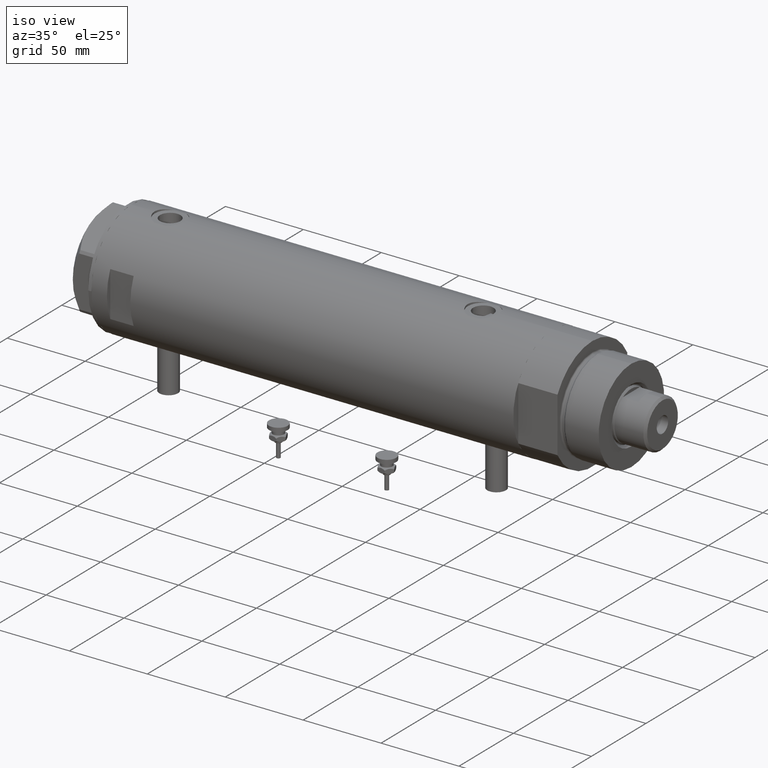
[diagram: clean part render]
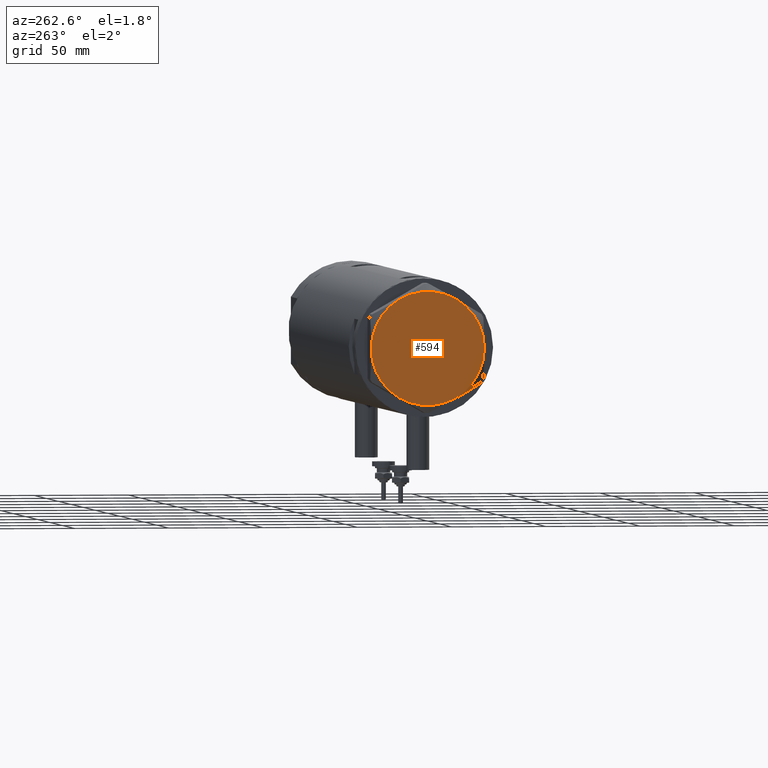
[diagram: tour spotlight — one face highlighted and labeled with its STEP entity id]
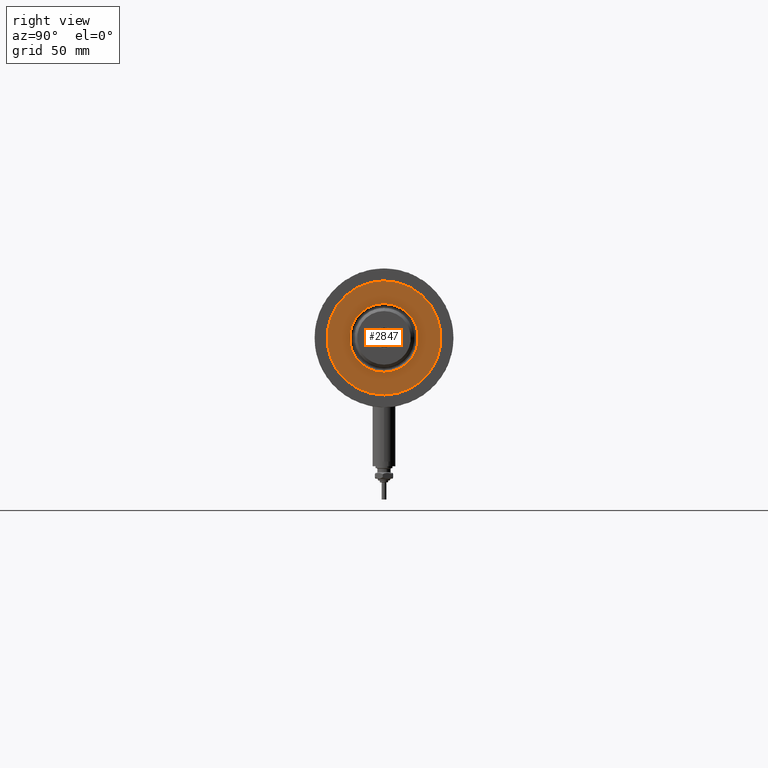
[diagram: tour spotlight — one face highlighted and labeled with its STEP entity id]
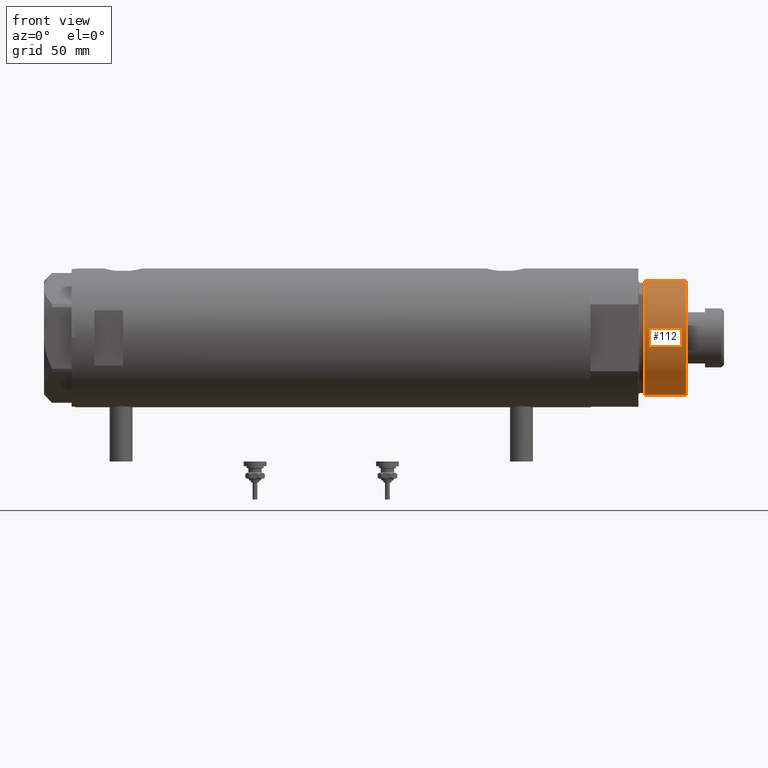
[diagram: tour spotlight — one face highlighted and labeled with its STEP entity id]
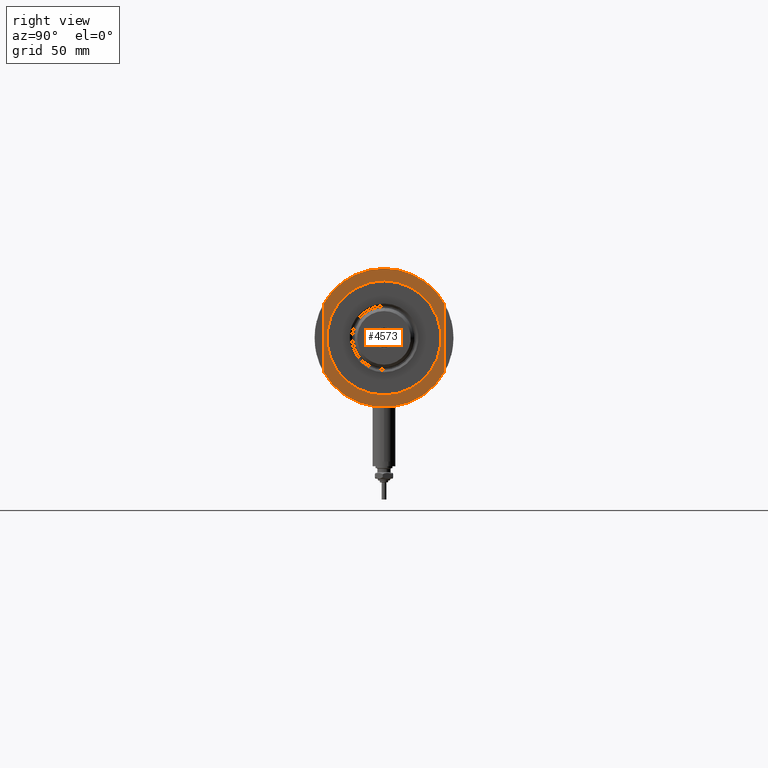
[diagram: tour spotlight — one face highlighted and labeled with its STEP entity id]
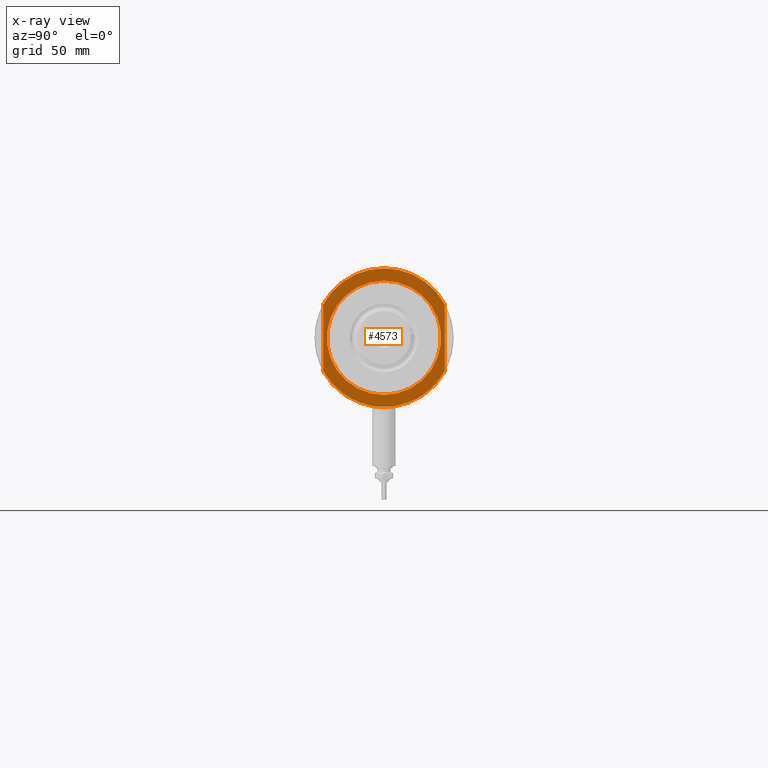
[diagram: x-ray of the same camera — body ghosted, this tour face saturated]
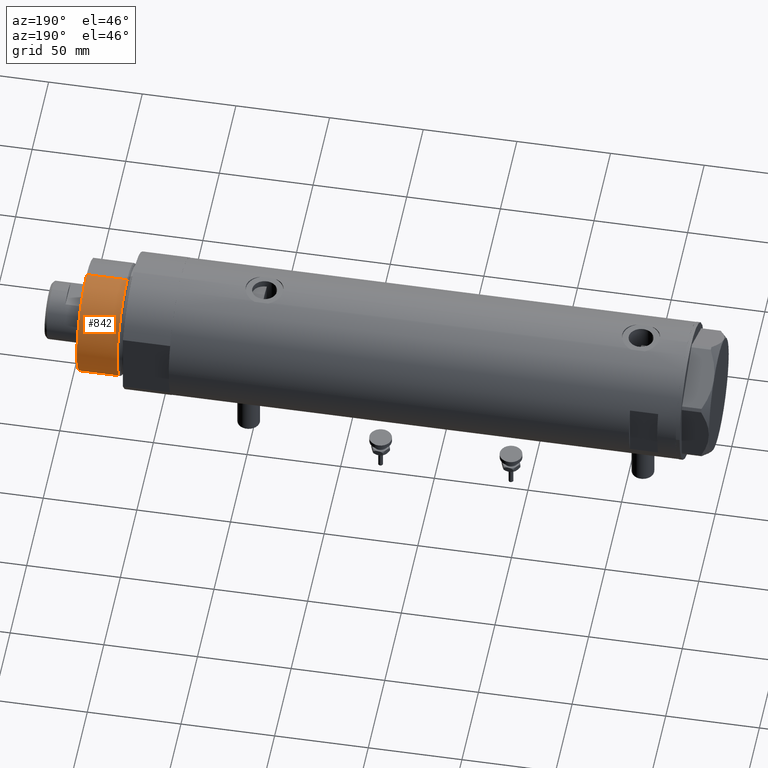
[diagram: tour spotlight — one face highlighted and labeled with its STEP entity id]
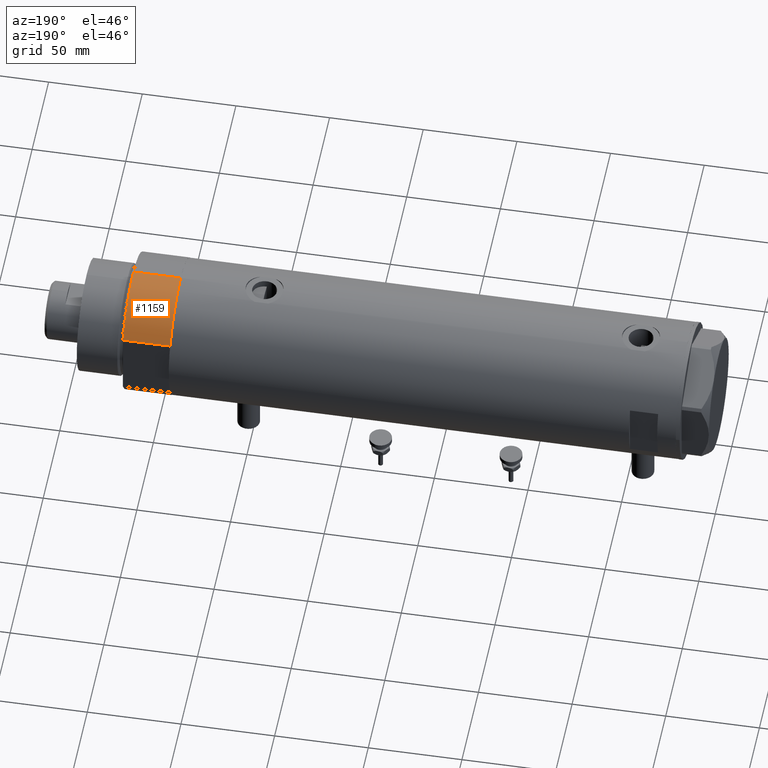
[diagram: tour spotlight — one face highlighted and labeled with its STEP entity id]
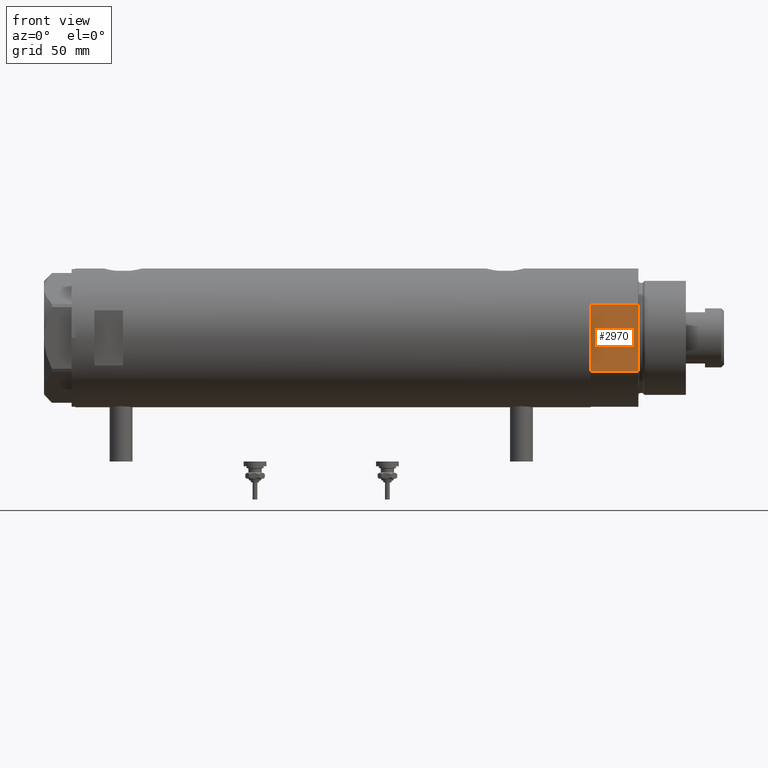
[diagram: tour spotlight — one face highlighted and labeled with its STEP entity id]
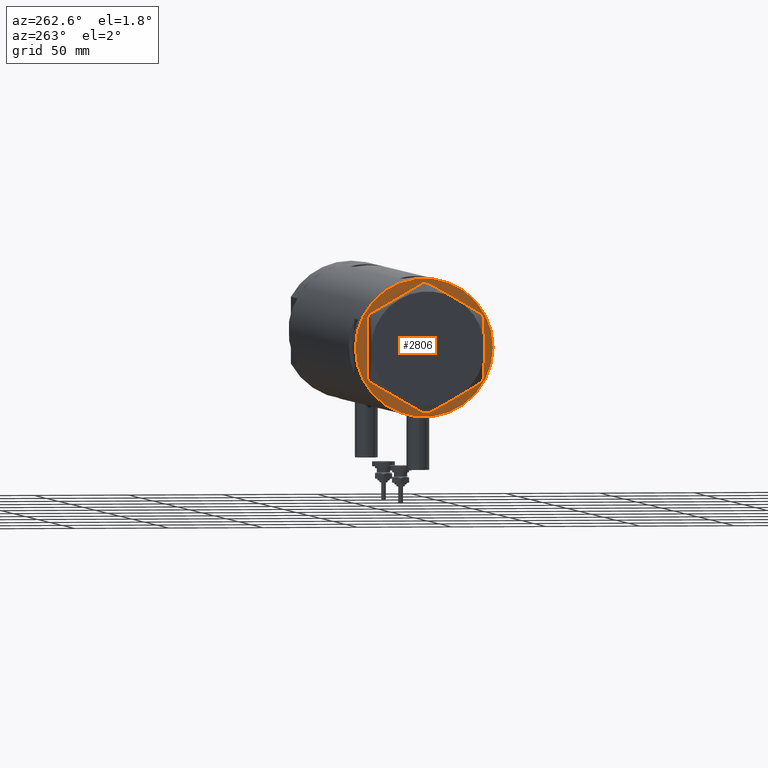
[diagram: tour spotlight — one face highlighted and labeled with its STEP entity id]
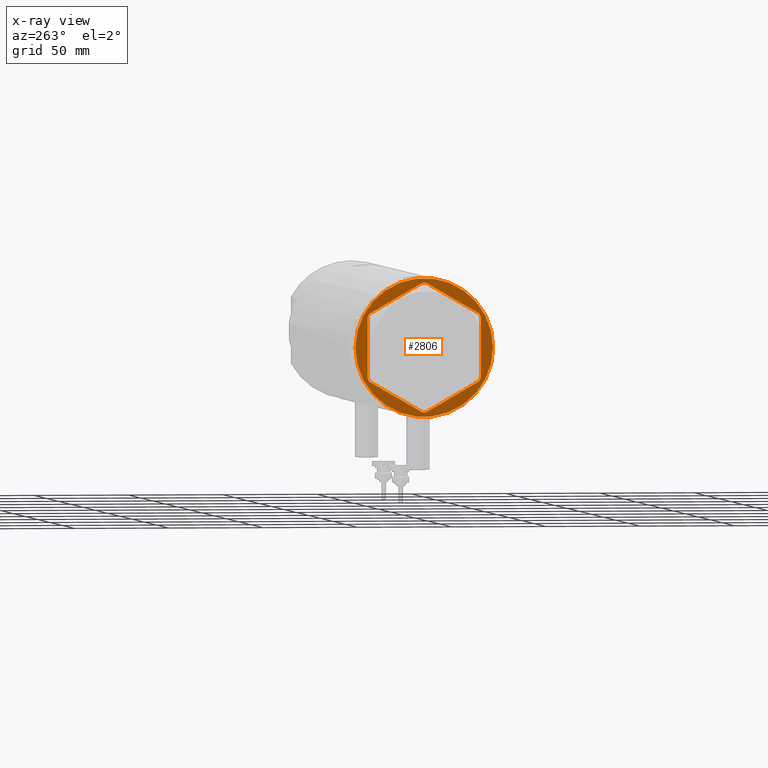
[diagram: x-ray of the same camera — body ghosted, this tour face saturated]
A machine part: a face-by-face anatomy tour. The part has 212 B-rep faces; the first image is the clean iso view, then the 8 largest visible faces are spotlighted one at a time (largest first), each with its STEP entity span.

Face 1 — auxiliary view, entity #594. In plain terms, the highlighted planar face has unit normal (-1, -0, 0).
Definition (entity closure, byte-faithful):
#37 = EDGE_CURVE ( 'NONE', #1733, #5540, #2464, .T. ) ;
#227 = AXIS2_PLACEMENT_3D ( 'NONE', #764, #3905, #297 ) ;
#297 = DIRECTION ( 'NONE',  ( 1.000000000000000000, 0.000000000000000000, 0.000000000000000000 ) ) ;
#335 = DIRECTION ( 'NONE',  ( 0.000000000000000000, 0.000000000000000000, 1.000000000000000000 ) ) ;
#406 = EDGE_LOOP ( 'NONE', ( #4609, #1707, #4826, #2868, #2639, #605 ) ) ;
#594 = ADVANCED_FACE ( 'NONE', ( #615 ), #1976, .T. ) ;
#605 = ORIENTED_EDGE ( 'NONE', *, *, #4395, .T. ) ;
#615 = FACE_OUTER_BOUND ( 'NONE', #406, .T. ) ;
#652 = AXIS2_PLACEMENT_3D ( 'NONE', #1915, #1462, #1049 ) ;
#702 = CIRCLE ( 'NONE', #227, 30.00000000000000000 ) ;
#764 = CARTESIAN_POINT ( 'NONE',  ( 0.000000000000000000, 0.000000000000000000, 14.50000000000000000 ) ) ;
#856 = DIRECTION ( 'NONE',  ( 1.000000000000000000, 0.000000000000000000, 0.000000000000000000 ) ) ;
#1026 = AXIS2_PLACEMENT_3D ( 'NONE', #1218, #335, #3982 ) ;
#1034 = CIRCLE ( 'NONE', #5377, 30.00000000000000000 ) ;
#1049 = DIRECTION ( 'NONE',  ( 1.000000000000000000, 0.000000000000000000, -0.000000000000000000 ) ) ;
#1127 = VERTEX_POINT ( 'NONE', #5783 ) ;
#1218 = CARTESIAN_POINT ( 'NONE',  ( 0.000000000000000000, 0.000000000000000000, 14.50000000000000000 ) ) ;
#1226 = CARTESIAN_POINT ( 'NONE',  ( 0.000000000000000000, 0.000000000000000000, 14.50000000000000000 ) ) ;
#1276 = EDGE_CURVE ( 'NONE', #5828, #4062, #2666, .T. ) ;
#1462 = DIRECTION ( 'NONE',  ( 0.000000000000000000, 0.000000000000000000, 1.000000000000000000 ) ) ;
#1611 = DIRECTION ( 'NONE',  ( 0.000000000000000000, 0.000000000000000000, 1.000000000000000000 ) ) ;
#1648 = VERTEX_POINT ( 'NONE', #5380 ) ;
#1707 = ORIENTED_EDGE ( 'NONE', *, *, #1276, .T. ) ;
#1733 = VERTEX_POINT ( 'NONE', #5033 ) ;
#1811 = CARTESIAN_POINT ( 'NONE',  ( 0.000000000000000000, 0.000000000000000000, 14.50000000000000000 ) ) ;
#1842 = CIRCLE ( 'NONE', #5218, 30.00000000000000000 ) ;
#1915 = CARTESIAN_POINT ( 'NONE',  ( 0.000000000000000000, 0.000000000000000000, 14.50000000000000000 ) ) ;
#1976 = PLANE ( 'NONE',  #652 ) ;
#1987 = DIRECTION ( 'NONE',  ( 0.000000000000000000, 0.000000000000000000, 1.000000000000000000 ) ) ;
#2116 = CARTESIAN_POINT ( 'NONE',  ( 0.000000000000000000, 0.000000000000000000, 14.50000000000000000 ) ) ;
#2164 = CARTESIAN_POINT ( 'NONE',  ( -30.00000000000000000, 0.000000000000000000, 14.50000000000000000 ) ) ;
#2464 = CIRCLE ( 'NONE', #1026, 30.00000000000000000 ) ;
#2468 = DIRECTION ( 'NONE',  ( 1.000000000000000000, 0.000000000000000000, 0.000000000000000000 ) ) ;
#2506 = EDGE_CURVE ( 'NONE', #1127, #5828, #1034, .T. ) ;
#2544 = CARTESIAN_POINT ( 'NONE',  ( 30.00000000000000000, 9.013887592422954582E-15, 14.50000000000000000 ) ) ;
#2597 = DIRECTION ( 'NONE',  ( 0.000000000000000000, 0.000000000000000000, 1.000000000000000000 ) ) ;
#2639 = ORIENTED_EDGE ( 'NONE', *, *, #2684, .T. ) ;
#2666 = CIRCLE ( 'NONE', #3707, 30.00000000000000000 ) ;
#2684 = EDGE_CURVE ( 'NONE', #5540, #1648, #3652, .T. ) ;
#2868 = ORIENTED_EDGE ( 'NONE', *, *, #37, .T. ) ;
#3258 = DIRECTION ( 'NONE',  ( 1.000000000000000000, 0.000000000000000000, 0.000000000000000000 ) ) ;
#3438 = EDGE_CURVE ( 'NONE', #4062, #1733, #702, .T. ) ;
#3652 = CIRCLE ( 'NONE', #5407, 30.00000000000000000 ) ;
#3707 = AXIS2_PLACEMENT_3D ( 'NONE', #1811, #5047, #856 ) ;
#3759 = CARTESIAN_POINT ( 'NONE',  ( 14.99999999999999467, 25.98076211353316367, 14.50000000000000000 ) ) ;
#3905 = DIRECTION ( 'NONE',  ( 0.000000000000000000, 0.000000000000000000, 1.000000000000000000 ) ) ;
#3982 = DIRECTION ( 'NONE',  ( 1.000000000000000000, 0.000000000000000000, 0.000000000000000000 ) ) ;
#4062 = VERTEX_POINT ( 'NONE', #3759 ) ;
#4395 = EDGE_CURVE ( 'NONE', #1648, #1127, #1842, .T. ) ;
#4609 = ORIENTED_EDGE ( 'NONE', *, *, #2506, .T. ) ;
#4826 = ORIENTED_EDGE ( 'NONE', *, *, #3438, .T. ) ;
#5033 = CARTESIAN_POINT ( 'NONE',  ( -14.99999999999999645, 25.98076211353316367, 14.50000000000000000 ) ) ;
#5047 = DIRECTION ( 'NONE',  ( 0.000000000000000000, 0.000000000000000000, 1.000000000000000000 ) ) ;
#5218 = AXIS2_PLACEMENT_3D ( 'NONE', #5761, #1611, #5685 ) ;
#5377 = AXIS2_PLACEMENT_3D ( 'NONE', #2116, #2597, #2468 ) ;
#5380 = CARTESIAN_POINT ( 'NONE',  ( -14.99999999999999645, -25.98076211353316367, 14.50000000000000000 ) ) ;
#5407 = AXIS2_PLACEMENT_3D ( 'NONE', #1226, #1987, #3258 ) ;
#5540 = VERTEX_POINT ( 'NONE', #2164 ) ;
#5685 = DIRECTION ( 'NONE',  ( 1.000000000000000000, 0.000000000000000000, 0.000000000000000000 ) ) ;
#5761 = CARTESIAN_POINT ( 'NONE',  ( 0.000000000000000000, 0.000000000000000000, 14.50000000000000000 ) ) ;
#5783 = CARTESIAN_POINT ( 'NONE',  ( 14.99999999999998757, -25.98076211353316722, 14.50000000000000000 ) ) ;
#5828 = VERTEX_POINT ( 'NONE', #2544 ) ;

Face 2 — right view, entity #2847. In plain terms, the highlighted planar face has unit normal (1, 0, -0).
Definition (entity closure, byte-faithful):
#188 = AXIS2_PLACEMENT_3D ( 'NONE', #2664, #3132, #4092 ) ;
#249 = AXIS2_PLACEMENT_3D ( 'NONE', #5168, #542, #1470 ) ;
#363 = CARTESIAN_POINT ( 'NONE',  ( 0.000000000000000000, 0.000000000000000000, 50.19999999999999574 ) ) ;
#511 = DIRECTION ( 'NONE',  ( -0.000000000000000000, -0.000000000000000000, -1.000000000000000000 ) ) ;
#542 = DIRECTION ( 'NONE',  ( 0.000000000000000000, 0.000000000000000000, 1.000000000000000000 ) ) ;
#638 = EDGE_LOOP ( 'NONE', ( #3730, #4166 ) ) ;
#720 = CIRCLE ( 'NONE', #3677, 18.04999999999996874 ) ;
#828 = PLANE ( 'NONE',  #5890 ) ;
#935 = CARTESIAN_POINT ( 'NONE',  ( 0.000000000000000000, 0.000000000000000000, 50.19999999999999574 ) ) ;
#1043 = CARTESIAN_POINT ( 'NONE',  ( 0.000000000000000000, 0.000000000000000000, 50.19999999999999574 ) ) ;
#1470 = DIRECTION ( 'NONE',  ( 1.000000000000000000, 0.000000000000000000, 0.000000000000000000 ) ) ;
#1508 = CIRCLE ( 'NONE', #3067, 30.00000000000000000 ) ;
#1849 = EDGE_CURVE ( 'NONE', #2603, #5788, #5859, .T. ) ;
#1980 = CARTESIAN_POINT ( 'NONE',  ( 18.04999999999996874, 0.000000000000000000, 50.19999999999999574 ) ) ;
#2176 = ORIENTED_EDGE ( 'NONE', *, *, #1849, .T. ) ;
#2302 = EDGE_CURVE ( 'NONE', #4746, #3923, #1508, .T. ) ;
#2385 = ORIENTED_EDGE ( 'NONE', *, *, #5254, .T. ) ;
#2603 = VERTEX_POINT ( 'NONE', #3122 ) ;
#2608 = DIRECTION ( 'NONE',  ( 0.000000000000000000, 0.000000000000000000, 1.000000000000000000 ) ) ;
#2664 = CARTESIAN_POINT ( 'NONE',  ( 0.000000000000000000, 0.000000000000000000, 50.19999999999999574 ) ) ;
#2665 = FACE_BOUND ( 'NONE', #4068, .T. ) ;
#2847 = ADVANCED_FACE ( 'NONE', ( #2665, #4834 ), #828, .T. ) ;
#3067 = AXIS2_PLACEMENT_3D ( 'NONE', #1043, #5574, #4617 ) ;
#3122 = CARTESIAN_POINT ( 'NONE',  ( -18.04999999999996874, 2.210487472460968951E-15, 50.19999999999999574 ) ) ;
#3132 = DIRECTION ( 'NONE',  ( -0.000000000000000000, -0.000000000000000000, -1.000000000000000000 ) ) ;
#3677 = AXIS2_PLACEMENT_3D ( 'NONE', #935, #511, #4667 ) ;
#3730 = ORIENTED_EDGE ( 'NONE', *, *, #5274, .T. ) ;
#3923 = VERTEX_POINT ( 'NONE', #4872 ) ;
#4068 = EDGE_LOOP ( 'NONE', ( #2385, #2176 ) ) ;
#4092 = DIRECTION ( 'NONE',  ( 1.000000000000000000, 0.000000000000000000, 0.000000000000000000 ) ) ;
#4166 = ORIENTED_EDGE ( 'NONE', *, *, #2302, .T. ) ;
#4617 = DIRECTION ( 'NONE',  ( 1.000000000000000000, 0.000000000000000000, 0.000000000000000000 ) ) ;
#4667 = DIRECTION ( 'NONE',  ( 1.000000000000000000, 0.000000000000000000, 0.000000000000000000 ) ) ;
#4746 = VERTEX_POINT ( 'NONE', #5052 ) ;
#4834 = FACE_OUTER_BOUND ( 'NONE', #638, .T. ) ;
#4872 = CARTESIAN_POINT ( 'NONE',  ( -30.00000000000000000, 0.000000000000000000, 50.19999999999999574 ) ) ;
#5039 = CIRCLE ( 'NONE', #249, 30.00000000000000000 ) ;
#5052 = CARTESIAN_POINT ( 'NONE',  ( 30.00000000000000000, 3.673940397442058389E-15, 50.19999999999999574 ) ) ;
#5168 = CARTESIAN_POINT ( 'NONE',  ( 0.000000000000000000, 0.000000000000000000, 50.19999999999999574 ) ) ;
#5254 = EDGE_CURVE ( 'NONE', #5788, #2603, #720, .T. ) ;
#5274 = EDGE_CURVE ( 'NONE', #3923, #4746, #5039, .T. ) ;
#5574 = DIRECTION ( 'NONE',  ( 0.000000000000000000, 0.000000000000000000, 1.000000000000000000 ) ) ;
#5788 = VERTEX_POINT ( 'NONE', #1980 ) ;
#5842 = DIRECTION ( 'NONE',  ( 1.000000000000000000, 0.000000000000000000, -0.000000000000000000 ) ) ;
#5859 = CIRCLE ( 'NONE', #188, 18.04999999999996874 ) ;
#5890 = AXIS2_PLACEMENT_3D ( 'NONE', #363, #2608, #5842 ) ;

Face 3 — front view, entity #112. In plain terms, the highlighted cylindrical surface (partial cylindrical patch) has radius 30 mm, axis along (-1, -0, 0).
Definition (entity closure, byte-faithful):
#112 = ADVANCED_FACE ( 'NONE', ( #4539 ), #739, .T. ) ;
#249 = AXIS2_PLACEMENT_3D ( 'NONE', #5168, #542, #1470 ) ;
#542 = DIRECTION ( 'NONE',  ( 0.000000000000000000, 0.000000000000000000, 1.000000000000000000 ) ) ;
#710 = VECTOR ( 'NONE', #2481, 1000.000000000000000 ) ;
#739 = CYLINDRICAL_SURFACE ( 'NONE', #3214, 30.00000000000000000 ) ;
#1470 = DIRECTION ( 'NONE',  ( 1.000000000000000000, 0.000000000000000000, 0.000000000000000000 ) ) ;
#1503 = CIRCLE ( 'NONE', #4677, 30.00000000000000000 ) ;
#1646 = VECTOR ( 'NONE', #4299, 1000.000000000000000 ) ;
#1682 = DIRECTION ( 'NONE',  ( -1.000000000000000000, 0.000000000000000000, 0.000000000000000000 ) ) ;
#1721 = VERTEX_POINT ( 'NONE', #3104 ) ;
#1738 = VERTEX_POINT ( 'NONE', #4566 ) ;
#1922 = EDGE_CURVE ( 'NONE', #1738, #1721, #1503, .T. ) ;
#2127 = CARTESIAN_POINT ( 'NONE',  ( 30.00000000000000000, 3.673940397442058389E-15, 50.19999999999999574 ) ) ;
#2283 = EDGE_LOOP ( 'NONE', ( #2577, #3458, #2521, #5289 ) ) ;
#2481 = DIRECTION ( 'NONE',  ( -0.000000000000000000, -0.000000000000000000, -1.000000000000000000 ) ) ;
#2521 = ORIENTED_EDGE ( 'NONE', *, *, #3173, .T. ) ;
#2577 = ORIENTED_EDGE ( 'NONE', *, *, #4066, .F. ) ;
#2950 = LINE ( 'NONE', #2127, #710 ) ;
#3104 = CARTESIAN_POINT ( 'NONE',  ( 30.00000000000000000, 3.673940397442058389E-15, 28.57384048104054486 ) ) ;
#3173 = EDGE_CURVE ( 'NONE', #3923, #1738, #4176, .T. ) ;
#3214 = AXIS2_PLACEMENT_3D ( 'NONE', #3257, #3572, #1682 ) ;
#3257 = CARTESIAN_POINT ( 'NONE',  ( 0.000000000000000000, 0.000000000000000000, 50.19999999999999574 ) ) ;
#3333 = CARTESIAN_POINT ( 'NONE',  ( -30.00000000000000000, 0.000000000000000000, 50.19999999999999574 ) ) ;
#3458 = ORIENTED_EDGE ( 'NONE', *, *, #5274, .F. ) ;
#3572 = DIRECTION ( 'NONE',  ( -0.000000000000000000, -0.000000000000000000, -1.000000000000000000 ) ) ;
#3923 = VERTEX_POINT ( 'NONE', #4872 ) ;
#4066 = EDGE_CURVE ( 'NONE', #4746, #1721, #2950, .T. ) ;
#4176 = LINE ( 'NONE', #3333, #1646 ) ;
#4269 = DIRECTION ( 'NONE',  ( 1.000000000000000000, 0.000000000000000000, 0.000000000000000000 ) ) ;
#4299 = DIRECTION ( 'NONE',  ( -0.000000000000000000, -0.000000000000000000, -1.000000000000000000 ) ) ;
#4539 = FACE_OUTER_BOUND ( 'NONE', #2283, .T. ) ;
#4566 = CARTESIAN_POINT ( 'NONE',  ( -30.00000000000000000, 0.000000000000000000, 28.57384048104054486 ) ) ;
#4677 = AXIS2_PLACEMENT_3D ( 'NONE', #5613, #5551, #4269 ) ;
#4746 = VERTEX_POINT ( 'NONE', #5052 ) ;
#4872 = CARTESIAN_POINT ( 'NONE',  ( -30.00000000000000000, 0.000000000000000000, 50.19999999999999574 ) ) ;
#5039 = CIRCLE ( 'NONE', #249, 30.00000000000000000 ) ;
#5052 = CARTESIAN_POINT ( 'NONE',  ( 30.00000000000000000, 3.673940397442058389E-15, 50.19999999999999574 ) ) ;
#5168 = CARTESIAN_POINT ( 'NONE',  ( 0.000000000000000000, 0.000000000000000000, 50.19999999999999574 ) ) ;
#5274 = EDGE_CURVE ( 'NONE', #3923, #4746, #5039, .T. ) ;
#5289 = ORIENTED_EDGE ( 'NONE', *, *, #1922, .T. ) ;
#5551 = DIRECTION ( 'NONE',  ( -0.000000000000000000, -0.000000000000000000, 1.000000000000000000 ) ) ;
#5613 = CARTESIAN_POINT ( 'NONE',  ( 0.000000000000000000, 0.000000000000000000, 28.57384048104054486 ) ) ;

Face 4 — right view, entity #4573. An x-ray twin of the same camera follows (body ghosted, this face saturated) — the face is partly hidden behind the body. In plain terms, the highlighted planar face has unit normal (1, 0, -0).
Definition (entity closure, byte-faithful):
#123 = DIRECTION ( 'NONE',  ( 1.000000000000000000, 0.000000000000000000, 0.000000000000000000 ) ) ;
#146 = AXIS2_PLACEMENT_3D ( 'NONE', #260, #2078, #4422 ) ;
#260 = CARTESIAN_POINT ( 'NONE',  ( 0.000000000000000000, 0.000000000000000000, 25.19999999999999929 ) ) ;
#280 = LINE ( 'NONE', #1123, #4935 ) ;
#310 = EDGE_CURVE ( 'NONE', #5344, #5810, #1579, .T. ) ;
#362 = ORIENTED_EDGE ( 'NONE', *, *, #4689, .T. ) ;
#370 = CARTESIAN_POINT ( 'NONE',  ( 17.55704986607943496, -32.00000000000000000, 25.19999999999999929 ) ) ;
#421 = EDGE_CURVE ( 'NONE', #5810, #3667, #3608, .T. ) ;
#422 = CARTESIAN_POINT ( 'NONE',  ( 30.00000000000000355, 0.000000000000000000, 25.19999999999999929 ) ) ;
#492 = CARTESIAN_POINT ( 'NONE',  ( -17.55704986607943141, 32.00000000000000000, 25.19999999999999929 ) ) ;
#522 = DIRECTION ( 'NONE',  ( 1.000000000000000000, 0.000000000000000000, 0.000000000000000000 ) ) ;
#725 = CARTESIAN_POINT ( 'NONE',  ( 0.000000000000000000, 0.000000000000000000, 25.19999999999999929 ) ) ;
#755 = ORIENTED_EDGE ( 'NONE', *, *, #2703, .F. ) ;
#966 = VECTOR ( 'NONE', #522, 1000.000000000000000 ) ;
#1082 = CIRCLE ( 'NONE', #146, 30.00000000000000355 ) ;
#1103 = AXIS2_PLACEMENT_3D ( 'NONE', #1731, #4045, #4076 ) ;
#1111 = VERTEX_POINT ( 'NONE', #370 ) ;
#1123 = CARTESIAN_POINT ( 'NONE',  ( -17.55704986607943141, -32.00000000000000000, 25.19999999999999929 ) ) ;
#1141 = CARTESIAN_POINT ( 'NONE',  ( -36.50000000000000000, 0.000000000000000000, 25.19999999999999929 ) ) ;
#1153 = ORIENTED_EDGE ( 'NONE', *, *, #4690, .T. ) ;
#1156 = DIRECTION ( 'NONE',  ( 1.000000000000000000, 0.000000000000000000, 0.000000000000000000 ) ) ;
#1335 = DIRECTION ( 'NONE',  ( 1.000000000000000000, 0.000000000000000000, -0.000000000000000000 ) ) ;
#1371 = LINE ( 'NONE', #492, #966 ) ;
#1579 = CIRCLE ( 'NONE', #1779, 36.50000000000000000 ) ;
#1590 = CARTESIAN_POINT ( 'NONE',  ( -17.55704986607943496, 32.00000000000000000, 25.19999999999999929 ) ) ;
#1606 = ORIENTED_EDGE ( 'NONE', *, *, #310, .T. ) ;
#1608 = DIRECTION ( 'NONE',  ( 1.000000000000000000, 0.000000000000000000, 0.000000000000000000 ) ) ;
#1623 = VERTEX_POINT ( 'NONE', #5743 ) ;
#1665 = CIRCLE ( 'NONE', #3190, 30.00000000000000355 ) ;
#1731 = CARTESIAN_POINT ( 'NONE',  ( 0.000000000000000000, 0.000000000000000000, 25.19999999999999929 ) ) ;
#1779 = AXIS2_PLACEMENT_3D ( 'NONE', #725, #5784, #1156 ) ;
#1839 = FACE_BOUND ( 'NONE', #5027, .T. ) ;
#1958 = CARTESIAN_POINT ( 'NONE',  ( 0.000000000000000000, 0.000000000000000000, 25.19999999999999929 ) ) ;
#1968 = CARTESIAN_POINT ( 'NONE',  ( -17.55704986607943496, -32.00000000000000000, 25.19999999999999929 ) ) ;
#2078 = DIRECTION ( 'NONE',  ( -0.000000000000000000, -0.000000000000000000, -1.000000000000000000 ) ) ;
#2125 = VERTEX_POINT ( 'NONE', #3389 ) ;
#2397 = DIRECTION ( 'NONE',  ( 0.000000000000000000, 0.000000000000000000, 1.000000000000000000 ) ) ;
#2599 = PLANE ( 'NONE',  #3376 ) ;
#2642 = CIRCLE ( 'NONE', #5622, 36.50000000000000000 ) ;
#2703 = EDGE_CURVE ( 'NONE', #5344, #1623, #1371, .T. ) ;
#2962 = DIRECTION ( 'NONE',  ( -1.000000000000000000, -0.000000000000000000, -0.000000000000000000 ) ) ;
#3190 = AXIS2_PLACEMENT_3D ( 'NONE', #5021, #4288, #1608 ) ;
#3376 = AXIS2_PLACEMENT_3D ( 'NONE', #3965, #5079, #1335 ) ;
#3389 = CARTESIAN_POINT ( 'NONE',  ( -30.00000000000000355, 3.673940397442059178E-15, 25.19999999999999929 ) ) ;
#3608 = CIRCLE ( 'NONE', #1103, 36.50000000000000000 ) ;
#3623 = FACE_OUTER_BOUND ( 'NONE', #4804, .T. ) ;
#3667 = VERTEX_POINT ( 'NONE', #1968 ) ;
#3895 = EDGE_CURVE ( 'NONE', #1111, #3667, #280, .T. ) ;
#3965 = CARTESIAN_POINT ( 'NONE',  ( 0.000000000000000000, 0.000000000000000000, 25.19999999999999929 ) ) ;
#3976 = ORIENTED_EDGE ( 'NONE', *, *, #3895, .F. ) ;
#3989 = VERTEX_POINT ( 'NONE', #422 ) ;
#4045 = DIRECTION ( 'NONE',  ( 0.000000000000000000, 0.000000000000000000, 1.000000000000000000 ) ) ;
#4076 = DIRECTION ( 'NONE',  ( 1.000000000000000000, 0.000000000000000000, 0.000000000000000000 ) ) ;
#4288 = DIRECTION ( 'NONE',  ( -0.000000000000000000, -0.000000000000000000, -1.000000000000000000 ) ) ;
#4332 = ORIENTED_EDGE ( 'NONE', *, *, #5297, .T. ) ;
#4422 = DIRECTION ( 'NONE',  ( 1.000000000000000000, 0.000000000000000000, 0.000000000000000000 ) ) ;
#4573 = ADVANCED_FACE ( 'NONE', ( #1839, #3623 ), #2599, .T. ) ;
#4689 = EDGE_CURVE ( 'NONE', #2125, #3989, #1082, .T. ) ;
#4690 = EDGE_CURVE ( 'NONE', #3989, #2125, #1665, .T. ) ;
#4804 = EDGE_LOOP ( 'NONE', ( #3976, #4332, #755, #1606, #4809 ) ) ;
#4809 = ORIENTED_EDGE ( 'NONE', *, *, #421, .T. ) ;
#4935 = VECTOR ( 'NONE', #2962, 1000.000000000000000 ) ;
#5021 = CARTESIAN_POINT ( 'NONE',  ( 0.000000000000000000, 0.000000000000000000, 25.19999999999999929 ) ) ;
#5027 = EDGE_LOOP ( 'NONE', ( #1153, #362 ) ) ;
#5079 = DIRECTION ( 'NONE',  ( 0.000000000000000000, 0.000000000000000000, 1.000000000000000000 ) ) ;
#5297 = EDGE_CURVE ( 'NONE', #1111, #1623, #2642, .T. ) ;
#5344 = VERTEX_POINT ( 'NONE', #1590 ) ;
#5622 = AXIS2_PLACEMENT_3D ( 'NONE', #1958, #2397, #123 ) ;
#5743 = CARTESIAN_POINT ( 'NONE',  ( 17.55704986607943496, 32.00000000000000000, 25.19999999999999929 ) ) ;
#5784 = DIRECTION ( 'NONE',  ( 0.000000000000000000, 0.000000000000000000, 1.000000000000000000 ) ) ;
#5810 = VERTEX_POINT ( 'NONE', #1141 ) ;

Face 5 — auxiliary view, entity #842. In plain terms, the highlighted cylindrical surface (partial cylindrical patch) has radius 30 mm, axis along (-1, -0, 0).
Definition (entity closure, byte-faithful):
#548 = FACE_OUTER_BOUND ( 'NONE', #5281, .T. ) ;
#710 = VECTOR ( 'NONE', #2481, 1000.000000000000000 ) ;
#842 = ADVANCED_FACE ( 'NONE', ( #548 ), #3629, .T. ) ;
#1043 = CARTESIAN_POINT ( 'NONE',  ( 0.000000000000000000, 0.000000000000000000, 50.19999999999999574 ) ) ;
#1142 = ORIENTED_EDGE ( 'NONE', *, *, #2302, .F. ) ;
#1423 = DIRECTION ( 'NONE',  ( -0.000000000000000000, -0.000000000000000000, -1.000000000000000000 ) ) ;
#1440 = ORIENTED_EDGE ( 'NONE', *, *, #3173, .F. ) ;
#1458 = DIRECTION ( 'NONE',  ( -0.000000000000000000, -0.000000000000000000, 1.000000000000000000 ) ) ;
#1508 = CIRCLE ( 'NONE', #3067, 30.00000000000000000 ) ;
#1646 = VECTOR ( 'NONE', #4299, 1000.000000000000000 ) ;
#1721 = VERTEX_POINT ( 'NONE', #3104 ) ;
#1738 = VERTEX_POINT ( 'NONE', #4566 ) ;
#1744 = AXIS2_PLACEMENT_3D ( 'NONE', #5636, #1458, #4716 ) ;
#1817 = DIRECTION ( 'NONE',  ( -1.000000000000000000, 0.000000000000000000, 0.000000000000000000 ) ) ;
#2127 = CARTESIAN_POINT ( 'NONE',  ( 30.00000000000000000, 3.673940397442058389E-15, 50.19999999999999574 ) ) ;
#2187 = AXIS2_PLACEMENT_3D ( 'NONE', #5929, #1423, #1817 ) ;
#2302 = EDGE_CURVE ( 'NONE', #4746, #3923, #1508, .T. ) ;
#2481 = DIRECTION ( 'NONE',  ( -0.000000000000000000, -0.000000000000000000, -1.000000000000000000 ) ) ;
#2950 = LINE ( 'NONE', #2127, #710 ) ;
#3067 = AXIS2_PLACEMENT_3D ( 'NONE', #1043, #5574, #4617 ) ;
#3104 = CARTESIAN_POINT ( 'NONE',  ( 30.00000000000000000, 3.673940397442058389E-15, 28.57384048104054486 ) ) ;
#3173 = EDGE_CURVE ( 'NONE', #3923, #1738, #4176, .T. ) ;
#3274 = CIRCLE ( 'NONE', #1744, 30.00000000000000000 ) ;
#3288 = EDGE_CURVE ( 'NONE', #1721, #1738, #3274, .T. ) ;
#3333 = CARTESIAN_POINT ( 'NONE',  ( -30.00000000000000000, 0.000000000000000000, 50.19999999999999574 ) ) ;
#3602 = ORIENTED_EDGE ( 'NONE', *, *, #4066, .T. ) ;
#3629 = CYLINDRICAL_SURFACE ( 'NONE', #2187, 30.00000000000000000 ) ;
#3923 = VERTEX_POINT ( 'NONE', #4872 ) ;
#4066 = EDGE_CURVE ( 'NONE', #4746, #1721, #2950, .T. ) ;
#4176 = LINE ( 'NONE', #3333, #1646 ) ;
#4299 = DIRECTION ( 'NONE',  ( -0.000000000000000000, -0.000000000000000000, -1.000000000000000000 ) ) ;
#4566 = CARTESIAN_POINT ( 'NONE',  ( -30.00000000000000000, 0.000000000000000000, 28.57384048104054486 ) ) ;
#4617 = DIRECTION ( 'NONE',  ( 1.000000000000000000, 0.000000000000000000, 0.000000000000000000 ) ) ;
#4716 = DIRECTION ( 'NONE',  ( 1.000000000000000000, 0.000000000000000000, 0.000000000000000000 ) ) ;
#4746 = VERTEX_POINT ( 'NONE', #5052 ) ;
#4872 = CARTESIAN_POINT ( 'NONE',  ( -30.00000000000000000, 0.000000000000000000, 50.19999999999999574 ) ) ;
#5052 = CARTESIAN_POINT ( 'NONE',  ( 30.00000000000000000, 3.673940397442058389E-15, 50.19999999999999574 ) ) ;
#5281 = EDGE_LOOP ( 'NONE', ( #1142, #3602, #5804, #1440 ) ) ;
#5574 = DIRECTION ( 'NONE',  ( 0.000000000000000000, 0.000000000000000000, 1.000000000000000000 ) ) ;
#5636 = CARTESIAN_POINT ( 'NONE',  ( 0.000000000000000000, 0.000000000000000000, 28.57384048104054486 ) ) ;
#5804 = ORIENTED_EDGE ( 'NONE', *, *, #3288, .T. ) ;
#5929 = CARTESIAN_POINT ( 'NONE',  ( 0.000000000000000000, 0.000000000000000000, 50.19999999999999574 ) ) ;

Face 6 — auxiliary view, entity #1159. In plain terms, the highlighted cylindrical surface (partial cylindrical patch) has radius 36.5 mm, axis along (-1, -0, 0).
Definition (entity closure, byte-faithful):
#52 = AXIS2_PLACEMENT_3D ( 'NONE', #1152, #5753, #2493 ) ;
#120 = ORIENTED_EDGE ( 'NONE', *, *, #5109, .F. ) ;
#134 = ORIENTED_EDGE ( 'NONE', *, *, #310, .F. ) ;
#225 = EDGE_CURVE ( 'NONE', #3576, #5344, #3801, .T. ) ;
#247 = CIRCLE ( 'NONE', #52, 36.50000000000000000 ) ;
#310 = EDGE_CURVE ( 'NONE', #5344, #5810, #1579, .T. ) ;
#441 = VECTOR ( 'NONE', #1754, 1000.000000000000000 ) ;
#725 = CARTESIAN_POINT ( 'NONE',  ( 0.000000000000000000, 0.000000000000000000, 25.19999999999999929 ) ) ;
#810 = CYLINDRICAL_SURFACE ( 'NONE', #2841, 36.50000000000000000 ) ;
#1141 = CARTESIAN_POINT ( 'NONE',  ( -36.50000000000000000, 0.000000000000000000, 25.19999999999999929 ) ) ;
#1152 = CARTESIAN_POINT ( 'NONE',  ( 0.000000000000000000, 0.000000000000000000, 0.000000000000000000 ) ) ;
#1156 = DIRECTION ( 'NONE',  ( 1.000000000000000000, 0.000000000000000000, 0.000000000000000000 ) ) ;
#1159 = ADVANCED_FACE ( 'NONE', ( #2558 ), #810, .T. ) ;
#1514 = CARTESIAN_POINT ( 'NONE',  ( -36.50000000000000000, 0.000000000000000000, 0.000000000000000000 ) ) ;
#1579 = CIRCLE ( 'NONE', #1779, 36.50000000000000000 ) ;
#1590 = CARTESIAN_POINT ( 'NONE',  ( -17.55704986607943496, 32.00000000000000000, 25.19999999999999929 ) ) ;
#1754 = DIRECTION ( 'NONE',  ( -0.000000000000000000, -0.000000000000000000, -1.000000000000000000 ) ) ;
#1779 = AXIS2_PLACEMENT_3D ( 'NONE', #725, #5784, #1156 ) ;
#1806 = EDGE_LOOP ( 'NONE', ( #120, #134, #3893, #4301 ) ) ;
#1810 = CARTESIAN_POINT ( 'NONE',  ( -36.50000000000000000, 0.000000000000000000, 25.19999999999999929 ) ) ;
#2379 = VERTEX_POINT ( 'NONE', #1514 ) ;
#2493 = DIRECTION ( 'NONE',  ( 1.000000000000000000, 0.000000000000000000, 0.000000000000000000 ) ) ;
#2558 = FACE_OUTER_BOUND ( 'NONE', #1806, .T. ) ;
#2740 = VECTOR ( 'NONE', #5719, 1000.000000000000000 ) ;
#2841 = AXIS2_PLACEMENT_3D ( 'NONE', #3558, #5413, #5325 ) ;
#3558 = CARTESIAN_POINT ( 'NONE',  ( 0.000000000000000000, 0.000000000000000000, 25.19999999999999929 ) ) ;
#3576 = VERTEX_POINT ( 'NONE', #5933 ) ;
#3801 = LINE ( 'NONE', #4708, #2740 ) ;
#3893 = ORIENTED_EDGE ( 'NONE', *, *, #225, .F. ) ;
#4098 = LINE ( 'NONE', #1810, #441 ) ;
#4301 = ORIENTED_EDGE ( 'NONE', *, *, #4971, .T. ) ;
#4708 = CARTESIAN_POINT ( 'NONE',  ( -17.55704986607943141, 32.00000000000000000, 0.000000000000000000 ) ) ;
#4971 = EDGE_CURVE ( 'NONE', #3576, #2379, #247, .T. ) ;
#5109 = EDGE_CURVE ( 'NONE', #5810, #2379, #4098, .T. ) ;
#5325 = DIRECTION ( 'NONE',  ( -1.000000000000000000, 0.000000000000000000, 0.000000000000000000 ) ) ;
#5344 = VERTEX_POINT ( 'NONE', #1590 ) ;
#5413 = DIRECTION ( 'NONE',  ( -0.000000000000000000, -0.000000000000000000, -1.000000000000000000 ) ) ;
#5719 = DIRECTION ( 'NONE',  ( -0.000000000000000000, -0.000000000000000000, 1.000000000000000000 ) ) ;
#5753 = DIRECTION ( 'NONE',  ( 0.000000000000000000, 0.000000000000000000, 1.000000000000000000 ) ) ;
#5784 = DIRECTION ( 'NONE',  ( 0.000000000000000000, 0.000000000000000000, 1.000000000000000000 ) ) ;
#5810 = VERTEX_POINT ( 'NONE', #1141 ) ;
#5933 = CARTESIAN_POINT ( 'NONE',  ( -17.55704986607943141, 32.00000000000000000, 0.000000000000000000 ) ) ;

Face 7 — front view, entity #2970. In plain terms, the highlighted planar face has unit normal (-0, 1, 0).
Definition (entity closure, byte-faithful):
#79 = CARTESIAN_POINT ( 'NONE',  ( -17.55704986607943496, -32.00000000000000000, 0.000000000000000000 ) ) ;
#88 = CARTESIAN_POINT ( 'NONE',  ( -17.55704986607943141, -32.00000000000000000, 0.000000000000000000 ) ) ;
#280 = LINE ( 'NONE', #1123, #4935 ) ;
#370 = CARTESIAN_POINT ( 'NONE',  ( 17.55704986607943496, -32.00000000000000000, 25.19999999999999929 ) ) ;
#392 = PLANE ( 'NONE',  #4713 ) ;
#416 = CARTESIAN_POINT ( 'NONE',  ( -17.55704986607943141, -32.00000000000000000, 0.000000000000000000 ) ) ;
#478 = DIRECTION ( 'NONE',  ( -0.000000000000000000, 1.000000000000000000, 0.000000000000000000 ) ) ;
#1111 = VERTEX_POINT ( 'NONE', #370 ) ;
#1123 = CARTESIAN_POINT ( 'NONE',  ( -17.55704986607943141, -32.00000000000000000, 25.19999999999999929 ) ) ;
#1150 = FACE_OUTER_BOUND ( 'NONE', #2624, .T. ) ;
#1323 = VECTOR ( 'NONE', #4328, 1000.000000000000000 ) ;
#1340 = VERTEX_POINT ( 'NONE', #5527 ) ;
#1497 = VECTOR ( 'NONE', #3431, 1000.000000000000000 ) ;
#1550 = LINE ( 'NONE', #88, #4527 ) ;
#1626 = EDGE_CURVE ( 'NONE', #4443, #3305, #3082, .T. ) ;
#1807 = CARTESIAN_POINT ( 'NONE',  ( -17.55704986607943141, -32.00000000000000000, 0.000000000000000000 ) ) ;
#1858 = EDGE_CURVE ( 'NONE', #3305, #3667, #2686, .T. ) ;
#1946 = ORIENTED_EDGE ( 'NONE', *, *, #1858, .F. ) ;
#1968 = CARTESIAN_POINT ( 'NONE',  ( -17.55704986607943496, -32.00000000000000000, 25.19999999999999929 ) ) ;
#2156 = LINE ( 'NONE', #3423, #1323 ) ;
#2172 = EDGE_CURVE ( 'NONE', #1340, #1111, #2156, .T. ) ;
#2624 = EDGE_LOOP ( 'NONE', ( #3271, #1946, #3766, #5216, #5787 ) ) ;
#2686 = LINE ( 'NONE', #416, #3711 ) ;
#2962 = DIRECTION ( 'NONE',  ( -1.000000000000000000, -0.000000000000000000, -0.000000000000000000 ) ) ;
#2970 = ADVANCED_FACE ( 'NONE', ( #1150 ), #392, .F. ) ;
#3082 = LINE ( 'NONE', #3496, #1497 ) ;
#3178 = EDGE_CURVE ( 'NONE', #1340, #4443, #1550, .T. ) ;
#3271 = ORIENTED_EDGE ( 'NONE', *, *, #3895, .T. ) ;
#3305 = VERTEX_POINT ( 'NONE', #79 ) ;
#3423 = CARTESIAN_POINT ( 'NONE',  ( 17.55704986607943141, -32.00000000000000000, 0.000000000000000000 ) ) ;
#3431 = DIRECTION ( 'NONE',  ( -1.000000000000000000, -0.000000000000000000, -0.000000000000000000 ) ) ;
#3496 = CARTESIAN_POINT ( 'NONE',  ( -17.55704986607943141, -32.00000000000000000, 0.000000000000000000 ) ) ;
#3667 = VERTEX_POINT ( 'NONE', #1968 ) ;
#3711 = VECTOR ( 'NONE', #4067, 1000.000000000000000 ) ;
#3766 = ORIENTED_EDGE ( 'NONE', *, *, #1626, .F. ) ;
#3895 = EDGE_CURVE ( 'NONE', #1111, #3667, #280, .T. ) ;
#4067 = DIRECTION ( 'NONE',  ( -0.000000000000000000, -0.000000000000000000, 1.000000000000000000 ) ) ;
#4328 = DIRECTION ( 'NONE',  ( -0.000000000000000000, -0.000000000000000000, 1.000000000000000000 ) ) ;
#4443 = VERTEX_POINT ( 'NONE', #5662 ) ;
#4527 = VECTOR ( 'NONE', #5587, 1000.000000000000000 ) ;
#4713 = AXIS2_PLACEMENT_3D ( 'NONE', #1807, #478, #5463 ) ;
#4935 = VECTOR ( 'NONE', #2962, 1000.000000000000000 ) ;
#5216 = ORIENTED_EDGE ( 'NONE', *, *, #3178, .F. ) ;
#5463 = DIRECTION ( 'NONE',  ( 0.000000000000000000, -0.000000000000000000, 1.000000000000000000 ) ) ;
#5527 = CARTESIAN_POINT ( 'NONE',  ( 17.55704986607943141, -32.00000000000000000, 0.000000000000000000 ) ) ;
#5587 = DIRECTION ( 'NONE',  ( -1.000000000000000000, -0.000000000000000000, -0.000000000000000000 ) ) ;
#5662 = CARTESIAN_POINT ( 'NONE',  ( 0.000000000000000000, -32.00000000000000000, 0.000000000000000000 ) ) ;
#5787 = ORIENTED_EDGE ( 'NONE', *, *, #2172, .T. ) ;

Face 8 — auxiliary view, entity #2806. An x-ray twin of the same camera follows (body ghosted, this face saturated) — the face is partly hidden behind the body. In plain terms, the highlighted planar face has unit normal (1, 0, -0).
Definition (entity closure, byte-faithful):
#11 = DIRECTION ( 'NONE',  ( 1.000000000000000000, -0.000000000000000000, -0.000000000000000000 ) ) ;
#48 = VECTOR ( 'NONE', #2871, 1000.000000000000000 ) ;
#83 = CIRCLE ( 'NONE', #2746, 36.50000000000000000 ) ;
#100 = CARTESIAN_POINT ( 'NONE',  ( -36.50000000000000000, 4.469960816887838430E-15, 0.000000000000000000 ) ) ;
#158 = VERTEX_POINT ( 'NONE', #4283 ) ;
#174 = CARTESIAN_POINT ( 'NONE',  ( 29.99999999999999289, 17.32050807568878170, 0.000000000000000000 ) ) ;
#219 = ORIENTED_EDGE ( 'NONE', *, *, #4078, .T. ) ;
#252 = CARTESIAN_POINT ( 'NONE',  ( 29.51502577388068715, -17.04050807568881254, 0.000000000000000000 ) ) ;
#272 = DIRECTION ( 'NONE',  ( 0.5000000000000019984, -0.8660254037844375974, -0.000000000000000000 ) ) ;
#291 = VECTOR ( 'NONE', #3579, 1000.000000000000000 ) ;
#296 = CARTESIAN_POINT ( 'NONE',  ( 0.000000000000000000, -34.08101615137752560, 0.000000000000000000 ) ) ;
#343 = EDGE_CURVE ( 'NONE', #2406, #158, #1535, .T. ) ;
#432 = VECTOR ( 'NONE', #3878, 999.9999999999998863 ) ;
#433 = CARTESIAN_POINT ( 'NONE',  ( 0.000000000000000000, 34.08101615137753981, 0.000000000000000000 ) ) ;
#435 = ORIENTED_EDGE ( 'NONE', *, *, #863, .F. ) ;
#459 = CARTESIAN_POINT ( 'NONE',  ( 0.000000000000000000, 0.000000000000000000, 0.000000000000000000 ) ) ;
#484 = CARTESIAN_POINT ( 'NONE',  ( -0.9699484522385684038, 34.08101615137753981, 0.000000000000000000 ) ) ;
#531 = VERTEX_POINT ( 'NONE', #4308 ) ;
#672 = ORIENTED_EDGE ( 'NONE', *, *, #2277, .F. ) ;
#863 = EDGE_CURVE ( 'NONE', #2460, #4916, #83, .T. ) ;
#868 = EDGE_CURVE ( 'NONE', #5321, #3501, #4127, .T. ) ;
#877 = VECTOR ( 'NONE', #2853, 1000.000000000000227 ) ;
#975 = DIRECTION ( 'NONE',  ( -1.000000000000000000, 0.000000000000000000, -0.000000000000000000 ) ) ;
#1015 = DIRECTION ( 'NONE',  ( 0.8660254037844387076, -0.4999999999999997780, 0.000000000000000000 ) ) ;
#1116 = CARTESIAN_POINT ( 'NONE',  ( -30.00000000000000000, -16.20050807568876294, 0.000000000000000000 ) ) ;
#1117 = CARTESIAN_POINT ( 'NONE',  ( 0.000000000000000000, 0.000000000000000000, 0.000000000000000000 ) ) ;
#1149 = VERTEX_POINT ( 'NONE', #1631 ) ;
#1166 = EDGE_CURVE ( 'NONE', #1149, #158, #1671, .T. ) ;
#1256 = VERTEX_POINT ( 'NONE', #3189 ) ;
#1280 = DIRECTION ( 'NONE',  ( 0.8660254037844389297, 0.4999999999999996114, 0.000000000000000000 ) ) ;
#1291 = EDGE_LOOP ( 'NONE', ( #435, #3459 ) ) ;
#1495 = CARTESIAN_POINT ( 'NONE',  ( 29.03005154776139207, 17.88050807568879463, 0.000000000000000000 ) ) ;
#1515 = LINE ( 'NONE', #296, #48 ) ;
#1535 = LINE ( 'NONE', #252, #3797 ) ;
#1587 = EDGE_CURVE ( 'NONE', #1969, #531, #2580, .T. ) ;
#1614 = CARTESIAN_POINT ( 'NONE',  ( -29.03005154776141339, -17.88050807568878042, 0.000000000000000000 ) ) ;
#1631 = CARTESIAN_POINT ( 'NONE',  ( 0.9699484522385750651, -34.08101615137752560, 0.000000000000000000 ) ) ;
#1671 = LINE ( 'NONE', #4379, #1878 ) ;
#1787 = LINE ( 'NONE', #433, #3103 ) ;
#1794 = EDGE_CURVE ( 'NONE', #4226, #5555, #4516, .T. ) ;
#1819 = FACE_OUTER_BOUND ( 'NONE', #1291, .T. ) ;
#1865 = CARTESIAN_POINT ( 'NONE',  ( -29.51502577388069071, 17.04050807568879833, 0.000000000000000000 ) ) ;
#1878 = VECTOR ( 'NONE', #1280, 1000.000000000000000 ) ;
#1918 = ORIENTED_EDGE ( 'NONE', *, *, #1587, .T. ) ;
#1969 = VERTEX_POINT ( 'NONE', #1495 ) ;
#1979 = VECTOR ( 'NONE', #272, 999.9999999999998863 ) ;
#2055 = VERTEX_POINT ( 'NONE', #1614 ) ;
#2183 = LINE ( 'NONE', #3262, #2671 ) ;
#2277 = EDGE_CURVE ( 'NONE', #2055, #1256, #2183, .T. ) ;
#2279 = DIRECTION ( 'NONE',  ( 0.000000000000000000, 0.000000000000000000, -1.000000000000000000 ) ) ;
#2307 = DIRECTION ( 'NONE',  ( -1.000000000000000000, 0.000000000000000000, 0.000000000000000000 ) ) ;
#2308 = CARTESIAN_POINT ( 'NONE',  ( 0.000000000000000000, 34.64101615137754209, 0.000000000000000000 ) ) ;
#2406 = VERTEX_POINT ( 'NONE', #3446 ) ;
#2460 = VERTEX_POINT ( 'NONE', #3003 ) ;
#2524 = AXIS2_PLACEMENT_3D ( 'NONE', #1117, #2753, #975 ) ;
#2580 = LINE ( 'NONE', #5865, #1979 ) ;
#2596 = ORIENTED_EDGE ( 'NONE', *, *, #1166, .F. ) ;
#2671 = VECTOR ( 'NONE', #1015, 1000.000000000000227 ) ;
#2717 = AXIS2_PLACEMENT_3D ( 'NONE', #459, #5445, #2307 ) ;
#2722 = CARTESIAN_POINT ( 'NONE',  ( 0.000000000000000000, 0.000000000000000000, 0.000000000000000000 ) ) ;
#2746 = AXIS2_PLACEMENT_3D ( 'NONE', #2722, #2279, #3649 ) ;
#2753 = DIRECTION ( 'NONE',  ( 0.000000000000000000, 0.000000000000000000, -1.000000000000000000 ) ) ;
#2806 = ADVANCED_FACE ( 'NONE', ( #5261, #1819 ), #3650, .F. ) ;
#2853 = DIRECTION ( 'NONE',  ( -0.8660254037844387076, 0.4999999999999997780, 0.000000000000000000 ) ) ;
#2871 = DIRECTION ( 'NONE',  ( -1.000000000000000000, -0.000000000000000000, -0.000000000000000000 ) ) ;
#2978 = EDGE_CURVE ( 'NONE', #4226, #3501, #3666, .T. ) ;
#3003 = CARTESIAN_POINT ( 'NONE',  ( 36.50000000000000000, 0.000000000000000000, 0.000000000000000000 ) ) ;
#3011 = CIRCLE ( 'NONE', #2717, 36.50000000000000000 ) ;
#3041 = LINE ( 'NONE', #3734, #4843 ) ;
#3085 = VERTEX_POINT ( 'NONE', #5008 ) ;
#3103 = VECTOR ( 'NONE', #11, 1000.000000000000000 ) ;
#3150 = EDGE_CURVE ( 'NONE', #1969, #3085, #4208, .T. ) ;
#3189 = CARTESIAN_POINT ( 'NONE',  ( -0.9699484522385886098, -34.08101615137752560, 0.000000000000000000 ) ) ;
#3262 = CARTESIAN_POINT ( 'NONE',  ( -30.00000000000000000, -17.32050807568877460, 0.000000000000000000 ) ) ;
#3266 = ORIENTED_EDGE ( 'NONE', *, *, #4649, .F. ) ;
#3309 = DIRECTION ( 'NONE',  ( -3.004629197474318063E-16, 1.000000000000000000, 0.000000000000000000 ) ) ;
#3413 = VECTOR ( 'NONE', #5083, 1000.000000000000114 ) ;
#3444 = DIRECTION ( 'NONE',  ( -0.5000000000000012212, -0.8660254037844380415, -0.000000000000000000 ) ) ;
#3446 = CARTESIAN_POINT ( 'NONE',  ( 30.00000000000000355, -16.20050807568876294, 0.000000000000000000 ) ) ;
#3459 = ORIENTED_EDGE ( 'NONE', *, *, #4821, .F. ) ;
#3501 = VERTEX_POINT ( 'NONE', #4323 ) ;
#3579 = DIRECTION ( 'NONE',  ( 0.000000000000000000, -1.000000000000000000, 0.000000000000000000 ) ) ;
#3640 = CARTESIAN_POINT ( 'NONE',  ( -30.00000000000000000, 17.32050807568877460, 0.000000000000000000 ) ) ;
#3649 = DIRECTION ( 'NONE',  ( -1.000000000000000000, 0.000000000000000000, 0.000000000000000000 ) ) ;
#3650 = PLANE ( 'NONE',  #2524 ) ;
#3666 = LINE ( 'NONE', #1865, #4338 ) ;
#3734 = CARTESIAN_POINT ( 'NONE',  ( 30.00000000000000355, -17.32050807568877460, 0.000000000000000000 ) ) ;
#3789 = ORIENTED_EDGE ( 'NONE', *, *, #2978, .T. ) ;
#3797 = VECTOR ( 'NONE', #3444, 999.9999999999998863 ) ;
#3878 = DIRECTION ( 'NONE',  ( -0.5000000000000012212, 0.8660254037844380415, -0.000000000000000000 ) ) ;
#3975 = CARTESIAN_POINT ( 'NONE',  ( -29.51502577388068715, -17.04050807568881254, 0.000000000000000000 ) ) ;
#4078 = EDGE_CURVE ( 'NONE', #2055, #5555, #4794, .T. ) ;
#4118 = DIRECTION ( 'NONE',  ( 0.5000000000000008882, 0.8660254037844381525, -0.000000000000000000 ) ) ;
#4120 = ORIENTED_EDGE ( 'NONE', *, *, #3150, .F. ) ;
#4127 = LINE ( 'NONE', #2308, #3413 ) ;
#4208 = LINE ( 'NONE', #174, #877 ) ;
#4226 = VERTEX_POINT ( 'NONE', #5893 ) ;
#4283 = CARTESIAN_POINT ( 'NONE',  ( 29.03005154776141694, -17.88050807568878042, 0.000000000000000000 ) ) ;
#4308 = CARTESIAN_POINT ( 'NONE',  ( 29.99999999999999289, 16.20050807568875584, 0.000000000000000000 ) ) ;
#4323 = CARTESIAN_POINT ( 'NONE',  ( -29.03005154776141339, 17.88050807568878042, 0.000000000000000000 ) ) ;
#4338 = VECTOR ( 'NONE', #4118, 1000.000000000000000 ) ;
#4379 = CARTESIAN_POINT ( 'NONE',  ( -5.841958412462644145E-15, -34.64101615137753498, 0.000000000000000000 ) ) ;
#4402 = EDGE_CURVE ( 'NONE', #1149, #1256, #1515, .T. ) ;
#4516 = LINE ( 'NONE', #3640, #291 ) ;
#4584 = EDGE_LOOP ( 'NONE', ( #4120, #1918, #3266, #4688, #2596, #4665, #672, #219, #4647, #3789, #5298, #4814 ) ) ;
#4647 = ORIENTED_EDGE ( 'NONE', *, *, #1794, .F. ) ;
#4649 = EDGE_CURVE ( 'NONE', #2406, #531, #3041, .T. ) ;
#4665 = ORIENTED_EDGE ( 'NONE', *, *, #4402, .T. ) ;
#4688 = ORIENTED_EDGE ( 'NONE', *, *, #343, .T. ) ;
#4732 = EDGE_CURVE ( 'NONE', #5321, #3085, #1787, .T. ) ;
#4794 = LINE ( 'NONE', #3975, #432 ) ;
#4814 = ORIENTED_EDGE ( 'NONE', *, *, #4732, .T. ) ;
#4821 = EDGE_CURVE ( 'NONE', #4916, #2460, #3011, .T. ) ;
#4843 = VECTOR ( 'NONE', #3309, 1000.000000000000000 ) ;
#4916 = VERTEX_POINT ( 'NONE', #100 ) ;
#5008 = CARTESIAN_POINT ( 'NONE',  ( 0.9699484522385712904, 34.08101615137753981, 0.000000000000000000 ) ) ;
#5083 = DIRECTION ( 'NONE',  ( -0.8660254037844387076, -0.4999999999999998335, 0.000000000000000000 ) ) ;
#5261 = FACE_BOUND ( 'NONE', #4584, .T. ) ;
#5298 = ORIENTED_EDGE ( 'NONE', *, *, #868, .F. ) ;
#5321 = VERTEX_POINT ( 'NONE', #484 ) ;
#5445 = DIRECTION ( 'NONE',  ( 0.000000000000000000, 0.000000000000000000, -1.000000000000000000 ) ) ;
#5555 = VERTEX_POINT ( 'NONE', #1116 ) ;
#5865 = CARTESIAN_POINT ( 'NONE',  ( 29.51502577388065873, 17.04050807568883386, 0.000000000000000000 ) ) ;
#5893 = CARTESIAN_POINT ( 'NONE',  ( -30.00000000000000000, 16.20050807568875584, 0.000000000000000000 ) ) ;